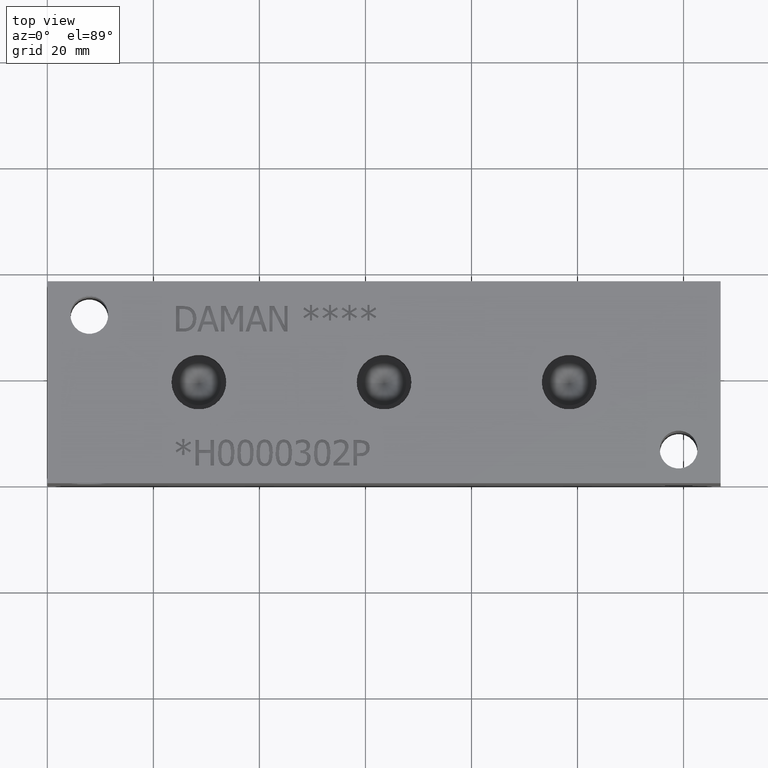
[diagram: clean part render]
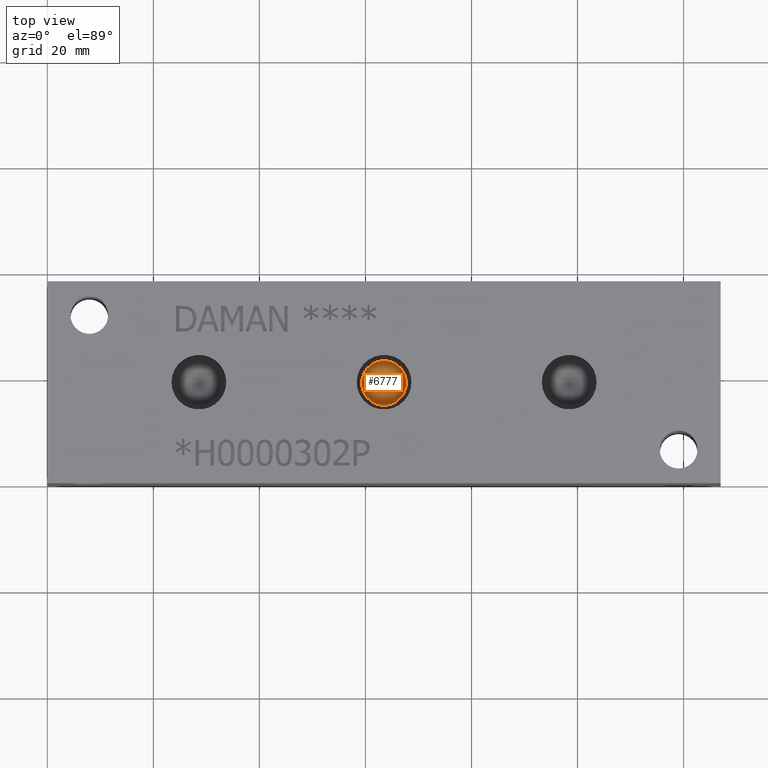
[diagram: same view with one face highlighted and labeled with its STEP entity id]
A machine part, top view. The second image highlights one B-rep face of the part: STEP entity #6777.
In plain terms, the highlighted conical surface has half-angle 60 deg.
Its self-contained STEP definition (entity closure, byte-faithful):
#14=CONICAL_SURFACE('',#7054,2.1082,1.0471975511966);
#63=CIRCLE('',#7055,4.2164);
#64=CIRCLE('',#7056,4.2164);
#669=FACE_OUTER_BOUND('',#1045,.T.);
#1045=EDGE_LOOP('',(#5928,#5929,#5930,#5931));
#1727=LINE('',#11531,#2393);
#2393=VECTOR('',#8232,2.1082);
#3216=VERTEX_POINT('',#11527);
#3217=VERTEX_POINT('',#11528);
#3218=VERTEX_POINT('',#11530);
#4135=EDGE_CURVE('',#3216,#3217,#63,.T.);
#4136=EDGE_CURVE('',#3217,#3218,#1727,.T.);
#4137=EDGE_CURVE('',#3217,#3216,#64,.T.);
#5928=ORIENTED_EDGE('',*,*,#4135,.T.);
#5929=ORIENTED_EDGE('',*,*,#4136,.T.);
#5930=ORIENTED_EDGE('',*,*,#4136,.F.);
#5931=ORIENTED_EDGE('',*,*,#4137,.T.);
#6777=ADVANCED_FACE('',(#669),#14,.F.);
#7054=AXIS2_PLACEMENT_3D('',#11526,#8228,#8229);
#7055=AXIS2_PLACEMENT_3D('',#11529,#8230,#8231);
#7056=AXIS2_PLACEMENT_3D('',#11532,#8233,#8234);
#8228=DIRECTION('center_axis',(0.,0.,1.));
#8229=DIRECTION('ref_axis',(1.,0.,0.));
#8230=DIRECTION('center_axis',(0.,0.,1.));
#8231=DIRECTION('ref_axis',(1.,0.,0.));
#8232=DIRECTION('',(0.866025403784439,1.06057523872491E-16,-0.5));
#8233=DIRECTION('center_axis',(0.,0.,1.));
#8234=DIRECTION('ref_axis',(1.,0.,0.));
#11526=CARTESIAN_POINT('Origin',(63.5,19.05,28.7654001624944));
#11527=CARTESIAN_POINT('',(67.7164,19.05,29.98257));
#11528=CARTESIAN_POINT('',(59.2836,19.05,29.98257));
#11529=CARTESIAN_POINT('Origin',(63.5,19.05,29.98257));
#11530=CARTESIAN_POINT('',(63.5,19.05,27.5482303249889));
#11531=CARTESIAN_POINT('',(61.3918,19.05,28.7654001624944));
#11532=CARTESIAN_POINT('Origin',(63.5,19.05,29.98257));